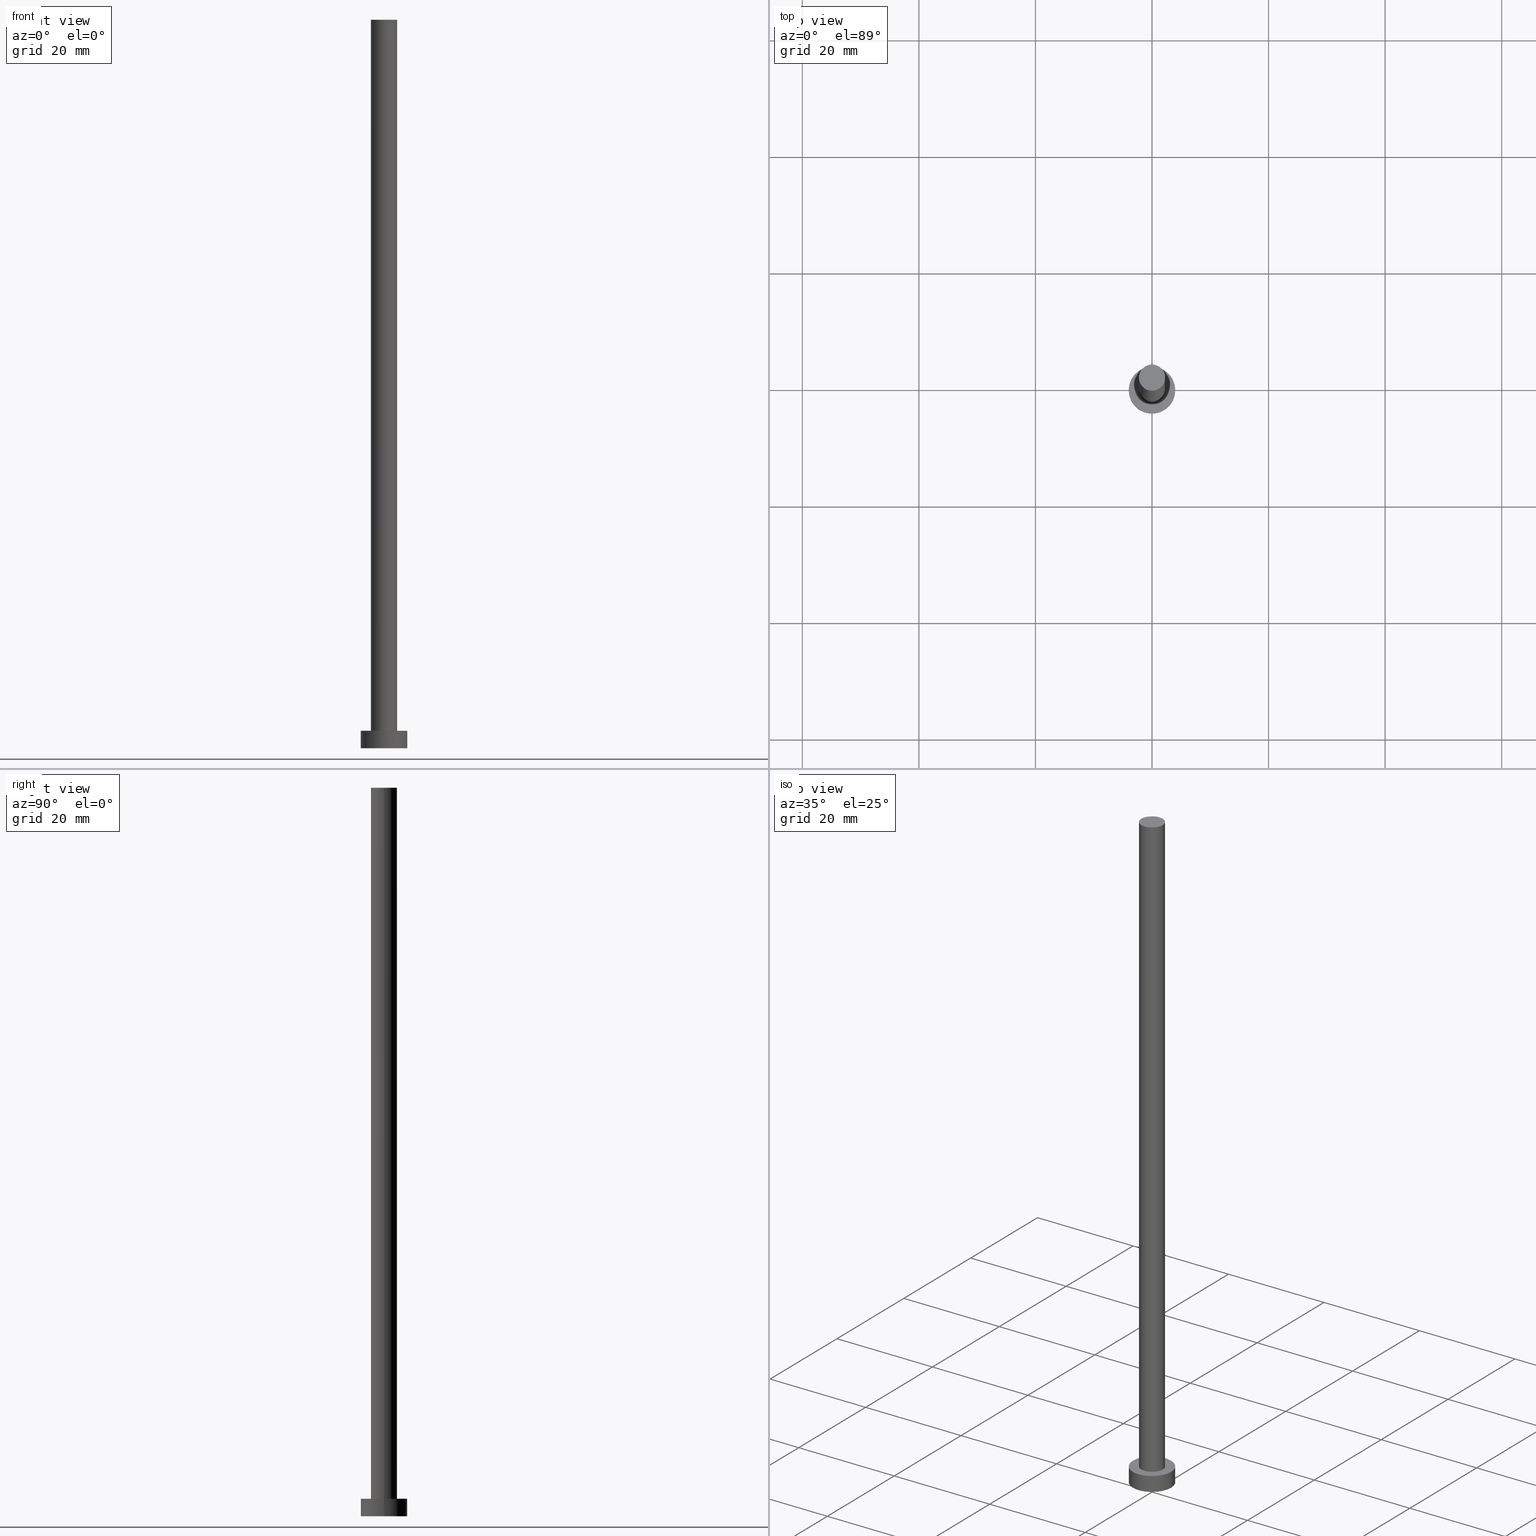
[diagram: canonical four-view strip — front | top / right | iso, engineering-drawing reading convention]
A machine part, canonical four-view strip (front | top / right | iso — engineering-drawing reading convention). The complete STEP part file that produces these views, byte-faithful:
ISO-10303-21;
HEADER;
FILE_DESCRIPTION (( 'STEP AP203' ),
    '1' );
FILE_NAME ('3f94.STEP',
    '2023-02-13T16:07:04',
    ( '' ),
    ( '' ),
    'SwSTEP 2.0',
    'SolidWorks 2019',
    '' );
FILE_SCHEMA (( 'CONFIG_CONTROL_DESIGN' ));
ENDSEC;

DATA;
#1 = LOCAL_TIME ( 17, 7, 4.000000000000000000, #190 ) ;
#2 = PERSON_AND_ORGANIZATION ( #5, #224 ) ;
#3 = COORDINATED_UNIVERSAL_TIME_OFFSET ( 1, 0, .AHEAD. ) ;
#4 = ORIENTED_EDGE ( 'NONE', *, *, #250, .F. ) ;
#5 = PERSON ( 'NEUR�EN�', 'NEUR�EN�', 'NEUR�EN�', ('NEUR�EN�'), ('NEUR�EN�'), ('NEUR�EN�') ) ;
#6 = FACE_OUTER_BOUND ( 'NONE', #232, .T. ) ;
#7 = AXIS2_PLACEMENT_3D ( 'NONE', #204, #12, #128 ) ;
#8 = PRODUCT ( '3f94', '3f94', '', ( #170 ) ) ;
#9 = DIRECTION ( 'NONE',  ( 0.000000000000000000, 0.000000000000000000, 1.000000000000000000 ) ) ;
#10 = DIRECTION ( 'NONE',  ( 1.000000000000000000, 0.000000000000000000, 0.000000000000000000 ) ) ;
#11 = CLOSED_SHELL ( 'NONE', ( #169, #106, #16, #35, #127, #34, #168 ) ) ;
#12 = DIRECTION ( 'NONE',  ( -0.000000000000000000, -0.000000000000000000, -1.000000000000000000 ) ) ;
#13 = CC_DESIGN_APPROVAL ( #100, ( #42 ) ) ;
#14 = VERTEX_POINT ( 'NONE', #247 ) ;
#15 = DIRECTION ( 'NONE',  ( 1.000000000000000000, 0.000000000000000000, 0.000000000000000000 ) ) ;
#16 = ADVANCED_FACE ( 'NONE', ( #62 ), #226, .T. ) ;
#17 = APPROVAL_ROLE ( '' ) ;
#18 = LINE ( 'NONE', #145, #21 ) ;
#19 = DATE_AND_TIME ( #228, #1 ) ;
#20 = CARTESIAN_POINT ( 'NONE',  ( 0.000000000000000000, 0.000000000000000000, 3.000000000000000000 ) ) ;
#21 = VECTOR ( 'NONE', #71, 1000.000000000000000 ) ;
#22 = ORIENTED_EDGE ( 'NONE', *, *, #243, .F. ) ;
#23 = DATE_AND_TIME ( #149, #218 ) ;
#24 = ORIENTED_EDGE ( 'NONE', *, *, #166, .F. ) ;
#25 = EDGE_LOOP ( 'NONE', ( #96, #61 ) ) ;
#26 = DIRECTION ( 'NONE',  ( 1.000000000000000000, 0.000000000000000000, -0.000000000000000000 ) ) ;
#27 = DIRECTION ( 'NONE',  ( -0.000000000000000000, -0.000000000000000000, -1.000000000000000000 ) ) ;
#28 = FACE_OUTER_BOUND ( 'NONE', #177, .T. ) ;
#29 = PLANE ( 'NONE',  #215 ) ;
#30 = AXIS2_PLACEMENT_3D ( 'NONE', #46, #179, #10 ) ;
#31 = DIRECTION ( 'NONE',  ( 0.000000000000000000, 0.000000000000000000, 1.000000000000000000 ) ) ;
#32 = AXIS2_PLACEMENT_3D ( 'NONE', #33, #207, #167 ) ;
#33 = CARTESIAN_POINT ( 'NONE',  ( 0.000000000000000000, 0.000000000000000000, 0.000000000000000000 ) ) ;
#34 = ADVANCED_FACE ( 'NONE', ( #28 ), #85, .T. ) ;
#35 = ADVANCED_FACE ( 'NONE', ( #47, #141 ), #29, .T. ) ;
#36 = PERSON_AND_ORGANIZATION ( #5, #224 ) ;
#37 = EDGE_CURVE ( 'NONE', #176, #43, #67, .T. ) ;
#38 = APPLICATION_PROTOCOL_DEFINITION ( 'international standard', 'config_control_design', 1994, #120 ) ;
#39 = DIRECTION ( 'NONE',  ( 0.000000000000000000, 0.000000000000000000, 1.000000000000000000 ) ) ;
#40 = DESIGN_CONTEXT ( 'detailed design', #54, 'design' ) ;
#41 = AXIS2_PLACEMENT_3D ( 'NONE', #82, #31, #161 ) ;
#42 = PRODUCT_DEFINITION_FORMATION_WITH_SPECIFIED_SOURCE ( 'LIBOVOLN�', '', #8, .NOT_KNOWN. ) ;
#43 = VERTEX_POINT ( 'NONE', #102 ) ;
#44 = VERTEX_POINT ( 'NONE', #66 ) ;
#45 = CARTESIAN_POINT ( 'NONE',  ( 2.250000000000000000, 2.755455298081543792E-16, 3.000000000000000000 ) ) ;
#46 = CARTESIAN_POINT ( 'NONE',  ( 0.000000000000000000, 0.000000000000000000, 3.000000000000000000 ) ) ;
#47 = FACE_BOUND ( 'NONE', #217, .T. ) ;
#48 = FACE_OUTER_BOUND ( 'NONE', #78, .T. ) ;
#49 = DIRECTION ( 'NONE',  ( -0.000000000000000000, -0.000000000000000000, -1.000000000000000000 ) ) ;
#50 = PERSON_AND_ORGANIZATION_ROLE ( 'creator' ) ;
#51 = DATE_AND_TIME ( #148, #113 ) ;
#52 = APPROVAL_ROLE ( '' ) ;
#53 = LINE ( 'NONE', #189, #57 ) ;
#54 = APPLICATION_CONTEXT ( 'configuration controlled 3d designs of mechanical parts and assemblies' ) ;
#55 = APPROVAL_DATE_TIME ( #154, #162 ) ;
#56 = ORIENTED_EDGE ( 'NONE', *, *, #222, .F. ) ;
#57 = VECTOR ( 'NONE', #88, 1000.000000000000000 ) ;
#58 = ORIENTED_EDGE ( 'NONE', *, *, #112, .T. ) ;
#59 = ORIENTED_EDGE ( 'NONE', *, *, #112, .F. ) ;
#60 = VECTOR ( 'NONE', #105, 1000.000000000000000 ) ;
#61 = ORIENTED_EDGE ( 'NONE', *, *, #250, .T. ) ;
#62 = FACE_OUTER_BOUND ( 'NONE', #240, .T. ) ;
#63 = CARTESIAN_POINT ( 'NONE',  ( 2.250000000000000000, 2.755455298081543792E-16, 125.0000000000000000 ) ) ;
#64 = CARTESIAN_POINT ( 'NONE',  ( 0.000000000000000000, 0.000000000000000000, 125.0000000000000000 ) ) ;
#65 = CC_DESIGN_APPROVAL ( #162, ( #185 ) ) ;
#66 = CARTESIAN_POINT ( 'NONE',  ( 4.000000000000000000, 4.898587196589412829E-16, 3.000000000000000000 ) ) ;
#67 = LINE ( 'NONE', #115, #248 ) ;
#68 = CC_DESIGN_PERSON_AND_ORGANIZATION_ASSIGNMENT ( #110, #193, ( #42 ) ) ;
#69 =( NAMED_UNIT ( * ) SI_UNIT ( $, .STERADIAN. ) SOLID_ANGLE_UNIT ( ) );
#70 = DIRECTION ( 'NONE',  ( 1.000000000000000000, 0.000000000000000000, 0.000000000000000000 ) ) ;
#71 = DIRECTION ( 'NONE',  ( -0.000000000000000000, -0.000000000000000000, -1.000000000000000000 ) ) ;
#72 = EDGE_CURVE ( 'NONE', #44, #14, #134, .T. ) ;
#73 = COORDINATED_UNIVERSAL_TIME_OFFSET ( 1, 0, .AHEAD. ) ;
#74 = APPROVAL_STATUS ( 'not_yet_approved' ) ;
#75 = CALENDAR_DATE ( 2023, 13, 2 ) ;
#76 = SECURITY_CLASSIFICATION_LEVEL ( 'unclassified' ) ;
#77 = PERSON_AND_ORGANIZATION ( #5, #224 ) ;
#78 = EDGE_LOOP ( 'NONE', ( #4, #245, #152, #156 ) ) ;
#79 = CIRCLE ( 'NONE', #41, 2.250000000000000000 ) ;
#80 = CIRCLE ( 'NONE', #202, 2.250000000000000000 ) ;
#81 = DIRECTION ( 'NONE',  ( 1.000000000000000000, 0.000000000000000000, -0.000000000000000000 ) ) ;
#82 = CARTESIAN_POINT ( 'NONE',  ( 0.000000000000000000, 0.000000000000000000, 125.0000000000000000 ) ) ;
#83 = CARTESIAN_POINT ( 'NONE',  ( 0.000000000000000000, 0.000000000000000000, 3.000000000000000000 ) ) ;
#84 = AXIS2_PLACEMENT_3D ( 'NONE', #99, #138, #186 ) ;
#85 = CYLINDRICAL_SURFACE ( 'NONE', #251, 2.250000000000000000 ) ;
#86 = CARTESIAN_POINT ( 'NONE',  ( 0.000000000000000000, 0.000000000000000000, 3.000000000000000000 ) ) ;
#87 =( LENGTH_UNIT ( ) NAMED_UNIT ( * ) SI_UNIT ( .MILLI., .METRE. ) );
#88 = DIRECTION ( 'NONE',  ( -0.000000000000000000, -0.000000000000000000, -1.000000000000000000 ) ) ;
#89 = DIRECTION ( 'NONE',  ( 0.000000000000000000, 0.000000000000000000, 1.000000000000000000 ) ) ;
#90 = EDGE_CURVE ( 'NONE', #97, #43, #192, .T. ) ;
#91 = DIRECTION ( 'NONE',  ( 0.000000000000000000, 0.000000000000000000, 1.000000000000000000 ) ) ;
#92 = CIRCLE ( 'NONE', #84, 4.000000000000000000 ) ;
#93 = PERSON_AND_ORGANIZATION ( #5, #224 ) ;
#94 = PERSON_AND_ORGANIZATION_ROLE ( 'classification_officer' ) ;
#95 = DATE_TIME_ROLE ( 'classification_date' ) ;
#96 = ORIENTED_EDGE ( 'NONE', *, *, #136, .T. ) ;
#97 = VERTEX_POINT ( 'NONE', #45 ) ;
#98 = ORIENTED_EDGE ( 'NONE', *, *, #221, .F. ) ;
#99 = CARTESIAN_POINT ( 'NONE',  ( 0.000000000000000000, 0.000000000000000000, 0.000000000000000000 ) ) ;
#100 = APPROVAL ( #107, 'NEUR�EN�' ) ;
#101 = LINE ( 'NONE', #181, #60 ) ;
#102 = CARTESIAN_POINT ( 'NONE',  ( -2.250000000000000000, 0.000000000000000000, 3.000000000000000000 ) ) ;
#103 = CARTESIAN_POINT ( 'NONE',  ( 0.000000000000000000, 0.000000000000000000, 0.000000000000000000 ) ) ;
#104 = APPROVAL_PERSON_ORGANIZATION ( #2, #162, #238 ) ;
#105 = DIRECTION ( 'NONE',  ( -0.000000000000000000, -0.000000000000000000, -1.000000000000000000 ) ) ;
#106 = ADVANCED_FACE ( 'NONE', ( #6 ), #242, .T. ) ;
#107 = APPROVAL_STATUS ( 'not_yet_approved' ) ;
#108 = CARTESIAN_POINT ( 'NONE',  ( 0.000000000000000000, 0.000000000000000000, 125.0000000000000000 ) ) ;
#109 = APPLICATION_PROTOCOL_DEFINITION ( 'international standard', 'config_control_design', 1994, #54 ) ;
#110 = PERSON_AND_ORGANIZATION ( #5, #224 ) ;
#111 = APPROVAL_DATE_TIME ( #211, #100 ) ;
#112 = EDGE_CURVE ( 'NONE', #14, #44, #129, .T. ) ;
#113 = LOCAL_TIME ( 17, 7, 4.000000000000000000, #73 ) ;
#114 = MANIFOLD_SOLID_BREP ( 'P�idat vysunut�m3', #11 ) ;
#115 = CARTESIAN_POINT ( 'NONE',  ( -2.250000000000000000, 0.000000000000000000, 125.0000000000000000 ) ) ;
#116 = DIRECTION ( 'NONE',  ( 1.000000000000000000, 0.000000000000000000, 0.000000000000000000 ) ) ;
#117 = FACE_OUTER_BOUND ( 'NONE', #25, .T. ) ;
#118 = EDGE_CURVE ( 'NONE', #44, #255, #101, .T. ) ;
#119 = CYLINDRICAL_SURFACE ( 'NONE', #7, 2.250000000000000000 ) ;
#120 = APPLICATION_CONTEXT ( 'configuration controlled 3d designs of mechanical parts and assemblies' ) ;
#121 = AXIS2_PLACEMENT_3D ( 'NONE', #103, #9, #199 ) ;
#122 = CARTESIAN_POINT ( 'NONE',  ( 0.000000000000000000, 0.000000000000000000, 3.000000000000000000 ) ) ;
#123 = DIRECTION ( 'NONE',  ( 1.000000000000000000, 0.000000000000000000, 0.000000000000000000 ) ) ;
#124 = COORDINATED_UNIVERSAL_TIME_OFFSET ( 1, 0, .AHEAD. ) ;
#125 = UNCERTAINTY_MEASURE_WITH_UNIT (LENGTH_MEASURE( 1.000000000000000082E-05 ), #87, 'distance_accuracy_value', 'NONE');
#126 = CIRCLE ( 'NONE', #144, 2.250000000000000000 ) ;
#127 = ADVANCED_FACE ( 'NONE', ( #225 ), #223, .F. ) ;
#128 = DIRECTION ( 'NONE',  ( -1.000000000000000000, 0.000000000000000000, 0.000000000000000000 ) ) ;
#129 = CIRCLE ( 'NONE', #142, 4.000000000000000000 ) ;
#130 = ORIENTED_EDGE ( 'NONE', *, *, #118, .T. ) ;
#131 = EDGE_LOOP ( 'NONE', ( #22, #24 ) ) ;
#132 = APPROVAL_STATUS ( 'not_yet_approved' ) ;
#133 = ORIENTED_EDGE ( 'NONE', *, *, #243, .T. ) ;
#134 = CIRCLE ( 'NONE', #30, 4.000000000000000000 ) ;
#135 = ORIENTED_EDGE ( 'NONE', *, *, #166, .T. ) ;
#136 = EDGE_CURVE ( 'NONE', #176, #157, #79, .T. ) ;
#137 = DIRECTION ( 'NONE',  ( -0.000000000000000000, -0.000000000000000000, -1.000000000000000000 ) ) ;
#138 = DIRECTION ( 'NONE',  ( 0.000000000000000000, 0.000000000000000000, 1.000000000000000000 ) ) ;
#139 = LOCAL_TIME ( 17, 7, 4.000000000000000000, #124 ) ;
#140 = DIRECTION ( 'NONE',  ( 0.000000000000000000, 0.000000000000000000, 1.000000000000000000 ) ) ;
#141 = FACE_OUTER_BOUND ( 'NONE', #165, .T. ) ;
#142 = AXIS2_PLACEMENT_3D ( 'NONE', #122, #205, #200 ) ;
#143 = DIRECTION ( 'NONE',  ( -0.000000000000000000, -0.000000000000000000, -1.000000000000000000 ) ) ;
#144 = AXIS2_PLACEMENT_3D ( 'NONE', #20, #89, #70 ) ;
#145 = CARTESIAN_POINT ( 'NONE',  ( 2.250000000000000000, 2.755455298081543792E-16, 125.0000000000000000 ) ) ;
#146 = PERSON_AND_ORGANIZATION_ROLE ( 'design_owner' ) ;
#147 = AXIS2_PLACEMENT_3D ( 'NONE', #86, #137, #164 ) ;
#148 = CALENDAR_DATE ( 2023, 13, 2 ) ;
#149 = CALENDAR_DATE ( 2023, 13, 2 ) ;
#150 = ORIENTED_EDGE ( 'NONE', *, *, #72, .T. ) ;
#151 = PRODUCT_DEFINITION ( 'NEZN�M�', '', #42, #40 ) ;
#152 = ORIENTED_EDGE ( 'NONE', *, *, #90, .T. ) ;
#153 = CIRCLE ( 'NONE', #32, 4.000000000000000000 ) ;
#154 = DATE_AND_TIME ( #75, #252 ) ;
#155 = ORIENTED_EDGE ( 'NONE', *, *, #37, .T. ) ;
#156 = ORIENTED_EDGE ( 'NONE', *, *, #37, .F. ) ;
#157 = VERTEX_POINT ( 'NONE', #63 ) ;
#158 = APPROVAL_PERSON_ORGANIZATION ( #253, #216, #17 ) ;
#159 = CARTESIAN_POINT ( 'NONE',  ( 0.000000000000000000, 0.000000000000000000, 3.000000000000000000 ) ) ;
#160 = DIRECTION ( 'NONE',  ( -1.000000000000000000, 0.000000000000000000, 0.000000000000000000 ) ) ;
#161 = DIRECTION ( 'NONE',  ( 1.000000000000000000, 0.000000000000000000, 0.000000000000000000 ) ) ;
#162 = APPROVAL ( #132, 'NEUR�EN�' ) ;
#163 =( GEOMETRIC_REPRESENTATION_CONTEXT ( 3 ) GLOBAL_UNCERTAINTY_ASSIGNED_CONTEXT ( ( #125 ) ) GLOBAL_UNIT_ASSIGNED_CONTEXT ( ( #87, #206, #69 ) ) REPRESENTATION_CONTEXT ( 'NONE', 'WORKASPACE' ) );
#164 = DIRECTION ( 'NONE',  ( -1.000000000000000000, 0.000000000000000000, 0.000000000000000000 ) ) ;
#165 = EDGE_LOOP ( 'NONE', ( #58, #150 ) ) ;
#166 = EDGE_CURVE ( 'NONE', #255, #233, #92, .T. ) ;
#167 = DIRECTION ( 'NONE',  ( 1.000000000000000000, 0.000000000000000000, 0.000000000000000000 ) ) ;
#168 = ADVANCED_FACE ( 'NONE', ( #117 ), #203, .T. ) ;
#169 = ADVANCED_FACE ( 'NONE', ( #48 ), #119, .T. ) ;
#170 = MECHANICAL_CONTEXT ( 'NONE', #120, 'mechanical' ) ;
#171 = AXIS2_PLACEMENT_3D ( 'NONE', #159, #244, #116 ) ;
#172 = CC_DESIGN_PERSON_AND_ORGANIZATION_ASSIGNMENT ( #77, #254, ( #42 ) ) ;
#173 = CARTESIAN_POINT ( 'NONE',  ( 4.000000000000000000, 4.898587196589412829E-16, 0.000000000000000000 ) ) ;
#174 = SHAPE_DEFINITION_REPRESENTATION ( #182, #219 ) ;
#175 = CC_DESIGN_PERSON_AND_ORGANIZATION_ASSIGNMENT ( #93, #50, ( #151 ) ) ;
#176 = VERTEX_POINT ( 'NONE', #191 ) ;
#177 = EDGE_LOOP ( 'NONE', ( #195, #178, #155, #236 ) ) ;
#178 = ORIENTED_EDGE ( 'NONE', *, *, #136, .F. ) ;
#179 = DIRECTION ( 'NONE',  ( 0.000000000000000000, 0.000000000000000000, 1.000000000000000000 ) ) ;
#180 = APPROVAL_PERSON_ORGANIZATION ( #36, #100, #52 ) ;
#181 = CARTESIAN_POINT ( 'NONE',  ( 4.000000000000000000, 4.898587196589412829E-16, 3.000000000000000000 ) ) ;
#182 = PRODUCT_DEFINITION_SHAPE ( 'NONE', 'NONE',  #151 ) ;
#183 = CARTESIAN_POINT ( 'NONE',  ( 0.000000000000000000, 0.000000000000000000, 3.000000000000000000 ) ) ;
#184 = DIRECTION ( 'NONE',  ( -1.000000000000000000, 0.000000000000000000, 0.000000000000000000 ) ) ;
#185 = SECURITY_CLASSIFICATION ( '', '', #76 ) ;
#186 = DIRECTION ( 'NONE',  ( 1.000000000000000000, 0.000000000000000000, 0.000000000000000000 ) ) ;
#187 = EDGE_CURVE ( 'NONE', #157, #97, #18, .T. ) ;
#188 = PRODUCT_RELATED_PRODUCT_CATEGORY ( 'detail', '', ( #8 ) ) ;
#189 = CARTESIAN_POINT ( 'NONE',  ( -4.000000000000000000, 0.000000000000000000, 3.000000000000000000 ) ) ;
#190 = COORDINATED_UNIVERSAL_TIME_OFFSET ( 1, 0, .AHEAD. ) ;
#191 = CARTESIAN_POINT ( 'NONE',  ( -2.250000000000000000, 0.000000000000000000, 125.0000000000000000 ) ) ;
#192 = CIRCLE ( 'NONE', #171, 2.250000000000000000 ) ;
#193 = PERSON_AND_ORGANIZATION_ROLE ( 'design_supplier' ) ;
#194 = CC_DESIGN_APPROVAL ( #216, ( #151 ) ) ;
#195 = ORIENTED_EDGE ( 'NONE', *, *, #187, .F. ) ;
#196 = CC_DESIGN_DATE_AND_TIME_ASSIGNMENT ( #51, #231, ( #151 ) ) ;
#197 = ORIENTED_EDGE ( 'NONE', *, *, #118, .F. ) ;
#198 = ORIENTED_EDGE ( 'NONE', *, *, #90, .F. ) ;
#199 = DIRECTION ( 'NONE',  ( 1.000000000000000000, 0.000000000000000000, -0.000000000000000000 ) ) ;
#200 = DIRECTION ( 'NONE',  ( 1.000000000000000000, 0.000000000000000000, 0.000000000000000000 ) ) ;
#201 = CC_DESIGN_PERSON_AND_ORGANIZATION_ASSIGNMENT ( #213, #94, ( #185 ) ) ;
#202 = AXIS2_PLACEMENT_3D ( 'NONE', #108, #91, #15 ) ;
#203 = PLANE ( 'NONE',  #230 ) ;
#204 = CARTESIAN_POINT ( 'NONE',  ( 0.000000000000000000, 0.000000000000000000, 125.0000000000000000 ) ) ;
#205 = DIRECTION ( 'NONE',  ( 0.000000000000000000, 0.000000000000000000, 1.000000000000000000 ) ) ;
#206 =( NAMED_UNIT ( * ) PLANE_ANGLE_UNIT ( ) SI_UNIT ( $, .RADIAN. ) );
#207 = DIRECTION ( 'NONE',  ( 0.000000000000000000, 0.000000000000000000, 1.000000000000000000 ) ) ;
#208 = CALENDAR_DATE ( 2023, 13, 2 ) ;
#209 = CARTESIAN_POINT ( 'NONE',  ( 0.000000000000000000, 0.000000000000000000, 0.000000000000000000 ) ) ;
#210 = CARTESIAN_POINT ( 'NONE',  ( -4.000000000000000000, 0.000000000000000000, 0.000000000000000000 ) ) ;
#211 = DATE_AND_TIME ( #208, #139 ) ;
#212 = ORIENTED_EDGE ( 'NONE', *, *, #221, .T. ) ;
#213 = PERSON_AND_ORGANIZATION ( #5, #224 ) ;
#214 = ORIENTED_EDGE ( 'NONE', *, *, #72, .F. ) ;
#215 = AXIS2_PLACEMENT_3D ( 'NONE', #183, #246, #81 ) ;
#216 = APPROVAL ( #74, 'NEUR�EN�' ) ;
#217 = EDGE_LOOP ( 'NONE', ( #56, #198 ) ) ;
#218 = LOCAL_TIME ( 17, 7, 4.000000000000000000, #3 ) ;
#219 = ADVANCED_BREP_SHAPE_REPRESENTATION ( '3f94', ( #114, #227 ), #163 ) ;
#220 = CARTESIAN_POINT ( 'NONE',  ( 0.000000000000000000, 0.000000000000000000, 125.0000000000000000 ) ) ;
#221 = EDGE_CURVE ( 'NONE', #14, #233, #53, .T. ) ;
#222 = EDGE_CURVE ( 'NONE', #43, #97, #126, .T. ) ;
#223 = PLANE ( 'NONE',  #121 ) ;
#224 = ORGANIZATION ( 'NEUR�EN�', 'NEUR�EN�', '' ) ;
#225 = FACE_OUTER_BOUND ( 'NONE', #131, .T. ) ;
#226 = CYLINDRICAL_SURFACE ( 'NONE', #147, 4.000000000000000000 ) ;
#227 = AXIS2_PLACEMENT_3D ( 'NONE', #209, #39, #123 ) ;
#228 = CALENDAR_DATE ( 2023, 13, 2 ) ;
#229 = APPROVAL_DATE_TIME ( #19, #216 ) ;
#230 = AXIS2_PLACEMENT_3D ( 'NONE', #64, #140, #26 ) ;
#231 = DATE_TIME_ROLE ( 'creation_date' ) ;
#232 = EDGE_LOOP ( 'NONE', ( #214, #130, #135, #98 ) ) ;
#233 = VERTEX_POINT ( 'NONE', #210 ) ;
#234 = CC_DESIGN_SECURITY_CLASSIFICATION ( #185, ( #42 ) ) ;
#235 = COORDINATED_UNIVERSAL_TIME_OFFSET ( 1, 0, .AHEAD. ) ;
#236 = ORIENTED_EDGE ( 'NONE', *, *, #222, .T. ) ;
#237 = CC_DESIGN_DATE_AND_TIME_ASSIGNMENT ( #23, #95, ( #185 ) ) ;
#238 = APPROVAL_ROLE ( '' ) ;
#239 = AXIS2_PLACEMENT_3D ( 'NONE', #83, #143, #184 ) ;
#240 = EDGE_LOOP ( 'NONE', ( #197, #59, #212, #133 ) ) ;
#241 = CC_DESIGN_PERSON_AND_ORGANIZATION_ASSIGNMENT ( #249, #146, ( #8 ) ) ;
#242 = CYLINDRICAL_SURFACE ( 'NONE', #239, 4.000000000000000000 ) ;
#243 = EDGE_CURVE ( 'NONE', #233, #255, #153, .T. ) ;
#244 = DIRECTION ( 'NONE',  ( 0.000000000000000000, 0.000000000000000000, 1.000000000000000000 ) ) ;
#245 = ORIENTED_EDGE ( 'NONE', *, *, #187, .T. ) ;
#246 = DIRECTION ( 'NONE',  ( 0.000000000000000000, 0.000000000000000000, 1.000000000000000000 ) ) ;
#247 = CARTESIAN_POINT ( 'NONE',  ( -4.000000000000000000, 0.000000000000000000, 3.000000000000000000 ) ) ;
#248 = VECTOR ( 'NONE', #49, 1000.000000000000000 ) ;
#249 = PERSON_AND_ORGANIZATION ( #5, #224 ) ;
#250 = EDGE_CURVE ( 'NONE', #157, #176, #80, .T. ) ;
#251 = AXIS2_PLACEMENT_3D ( 'NONE', #220, #27, #160 ) ;
#252 = LOCAL_TIME ( 17, 7, 4.000000000000000000, #235 ) ;
#253 = PERSON_AND_ORGANIZATION ( #5, #224 ) ;
#254 = PERSON_AND_ORGANIZATION_ROLE ( 'creator' ) ;
#255 = VERTEX_POINT ( 'NONE', #173 ) ;
ENDSEC;
END-ISO-10303-21;
